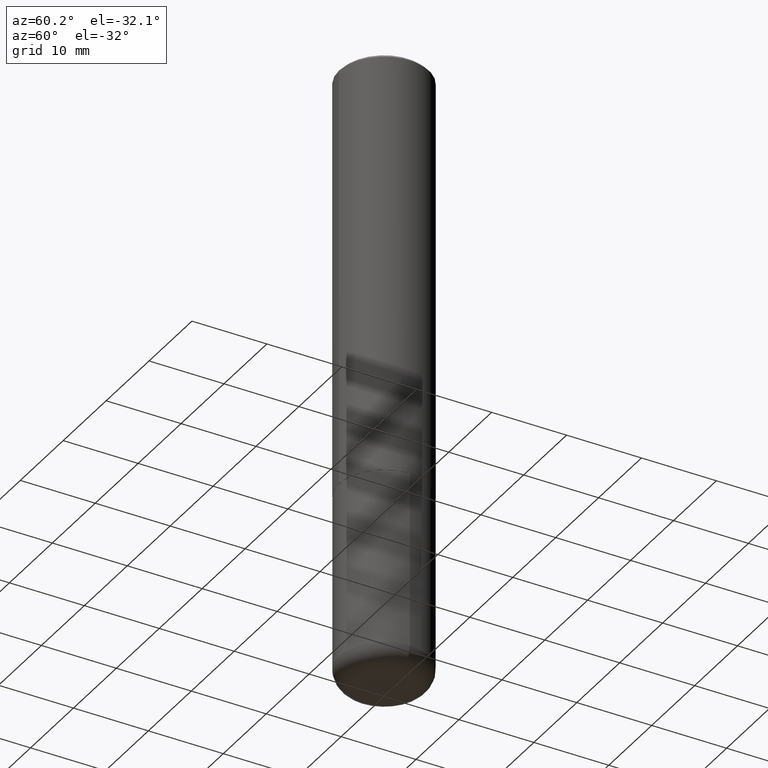
[diagram: clean part render]
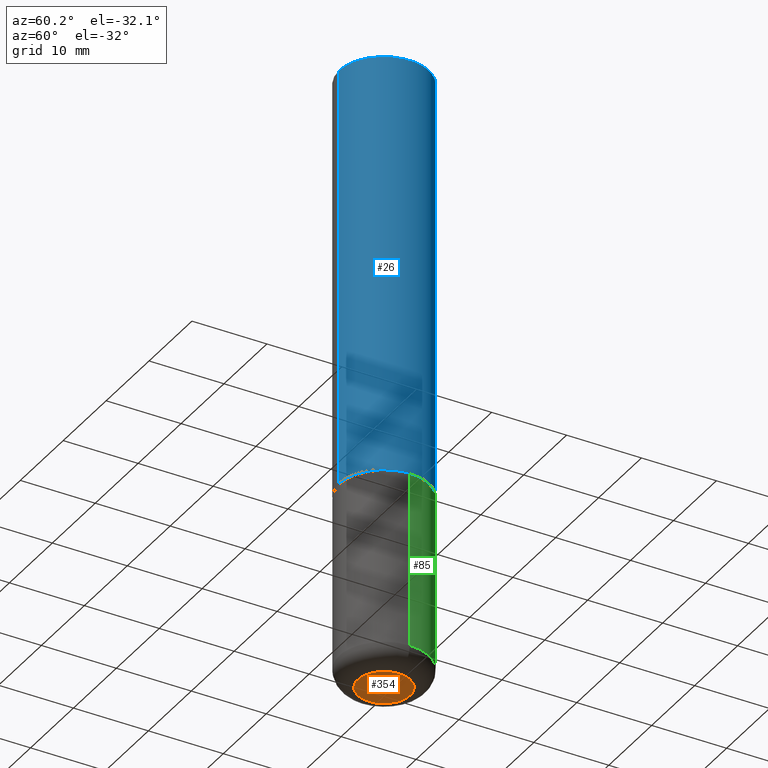
[diagram: same view with three faces highlighted in distinct colors, each labeled with its STEP entity id]
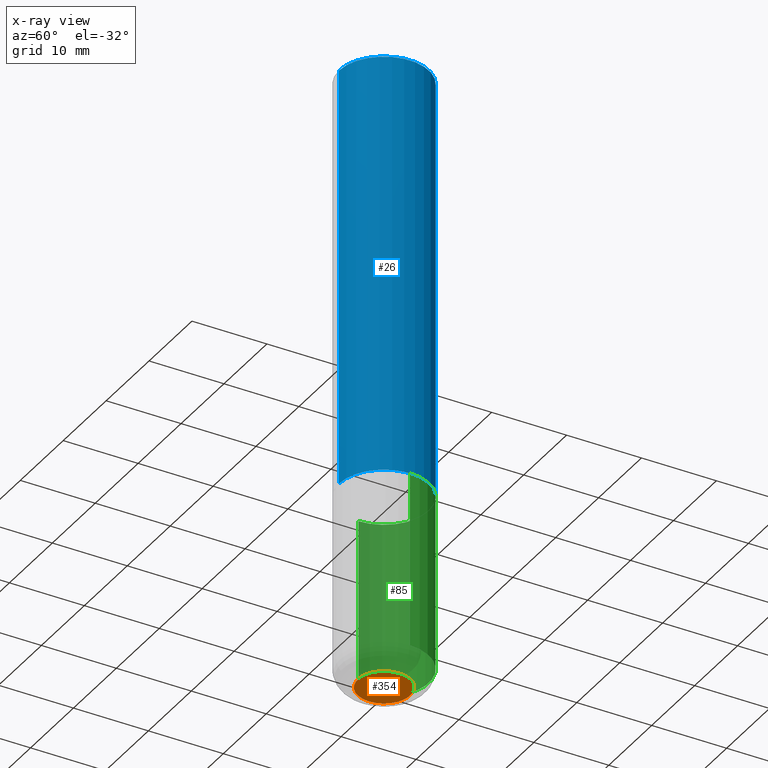
[diagram: x-ray of the same camera — body ghosted, the three highlighted faces saturated]
A machine part, auxiliary view with three faces highlighted in distinct colors.
The next image is the same camera in x-ray (body ghosted, the three faces saturated) — at least one of them is partly hidden behind the body in this view.
Their STEP definitions:

[orange] entity #354 — the highlighted planar face has unit normal (0, -0, -1).
#6 = EDGE_LOOP ( 'NONE', ( #298, #342 ) ) ;
#14 = PLANE ( 'NONE',  #284 ) ;
#37 = DIRECTION ( 'NONE',  ( -2.445468806185136597E-29, 3.491481338843145583E-15, 1.000000000000000000 ) ) ;
#42 = FACE_OUTER_BOUND ( 'NONE', #6, .T. ) ;
#57 = CARTESIAN_POINT ( 'NONE',  ( -0.1378000000000000058, -9.908617773195276440E-15, -3.267700000000000049 ) ) ;
#74 = DIRECTION ( 'NONE',  ( 2.438088387897960049E-29, -3.491481338843145188E-15, -1.000000000000000000 ) ) ;
#90 = CIRCLE ( 'NONE', #325, 0.1378000000000000058 ) ;
#100 = VERTEX_POINT ( 'NONE', #57 ) ;
#130 = AXIS2_PLACEMENT_3D ( 'NONE', #228, #288, #413 ) ;
#142 = DIRECTION ( 'NONE',  ( -1.000000000000000000, 6.982962677686265922E-15, -4.876176775795935793E-29 ) ) ;
#183 = EDGE_CURVE ( 'NONE', #258, #100, #379, .T. ) ;
#197 = CARTESIAN_POINT ( 'NONE',  ( 0.1378000000000000058, -1.237136582792291392E-14, -3.267700000000000049 ) ) ;
#228 = CARTESIAN_POINT ( 'NONE',  ( 7.991058417971171713E-29, -1.140911357093774644E-14, -3.267700000000000049 ) ) ;
#258 = VERTEX_POINT ( 'NONE', #197 ) ;
#284 = AXIS2_PLACEMENT_3D ( 'NONE', #303, #74, #142 ) ;
#288 = DIRECTION ( 'NONE',  ( -2.445468806185136597E-29, 3.491481338843145583E-15, 1.000000000000000000 ) ) ;
#297 = CARTESIAN_POINT ( 'NONE',  ( 7.991058417971171713E-29, -1.140911357093774644E-14, -3.267700000000000049 ) ) ;
#298 = ORIENTED_EDGE ( 'NONE', *, *, #183, .F. ) ;
#303 = CARTESIAN_POINT ( 'NONE',  ( 7.991058417971171713E-29, -1.140911357093774644E-14, -3.267700000000000049 ) ) ;
#318 = EDGE_CURVE ( 'NONE', #100, #258, #90, .T. ) ;
#325 = AXIS2_PLACEMENT_3D ( 'NONE', #297, #37, #360 ) ;
#342 = ORIENTED_EDGE ( 'NONE', *, *, #318, .F. ) ;
#354 = ADVANCED_FACE ( 'NONE', ( #42 ), #14, .T. ) ;
#360 = DIRECTION ( 'NONE',  ( 1.000000000000000000, -6.982962677686265922E-15, 0.000000000000000000 ) ) ;
#379 = CIRCLE ( 'NONE', #130, 0.1378000000000000058 ) ;
#413 = DIRECTION ( 'NONE',  ( 1.000000000000000000, -6.982962677686265922E-15, 0.000000000000000000 ) ) ;

[blue] entity #26 — the highlighted cylindrical surface (partial cylindrical patch) has radius 5.9995 mm, axis along (-0, 0, 1).
#8 = AXIS2_PLACEMENT_3D ( 'NONE', #247, #401, #194 ) ;
#11 = CARTESIAN_POINT ( 'NONE',  ( 1.678301941865385582E-15, 0.2361999999999924160, -2.243100000000000982 ) ) ;
#12 = DIRECTION ( 'NONE',  ( -2.443198551934710321E-29, 3.494732472144603410E-15, 1.000000000000000000 ) ) ;
#15 = ORIENTED_EDGE ( 'NONE', *, *, #50, .F. ) ;
#18 = ORIENTED_EDGE ( 'NONE', *, *, #223, .T. ) ;
#26 = ADVANCED_FACE ( 'NONE', ( #44 ), #304, .T. ) ;
#44 = FACE_OUTER_BOUND ( 'NONE', #137, .T. ) ;
#50 = EDGE_CURVE ( 'NONE', #241, #292, #384, .T. ) ;
#78 = EDGE_CURVE ( 'NONE', #324, #241, #282, .T. ) ;
#93 = CARTESIAN_POINT ( 'NONE',  ( -1.649375784469496920E-15, -0.2362000000000001321, 8.254558099205557624E-16 ) ) ;
#98 = DIRECTION ( 'NONE',  ( -2.443198551934710321E-29, 3.494732472144603410E-15, 1.000000000000000000 ) ) ;
#101 = CIRCLE ( 'NONE', #275, 0.2362000000000002709 ) ;
#111 = AXIS2_PLACEMENT_3D ( 'NONE', #207, #12, #334 ) ;
#112 = CARTESIAN_POINT ( 'NONE',  ( -1.649375784469443080E-15, -0.2362000000000081257, -2.243099999999999206 ) ) ;
#118 = VECTOR ( 'NONE', #139, 39.37007874015748143 ) ;
#124 = DIRECTION ( 'NONE',  ( -2.443198551934710321E-29, 3.494732472144603016E-15, 1.000000000000000000 ) ) ;
#133 = CARTESIAN_POINT ( 'NONE',  ( -1.620449627073635079E-15, -0.2362000000000000766, -0.01999999999999926489 ) ) ;
#137 = EDGE_LOOP ( 'NONE', ( #18, #367, #15, #179 ) ) ;
#139 = DIRECTION ( 'NONE',  ( -2.443198551934710321E-29, 3.494732472144603016E-15, 1.000000000000000000 ) ) ;
#179 = ORIENTED_EDGE ( 'NONE', *, *, #78, .F. ) ;
#194 = DIRECTION ( 'NONE',  ( -6.982962677686265922E-15, -1.000000000000000000, 3.487819265831411744E-15 ) ) ;
#207 = CARTESIAN_POINT ( 'NONE',  ( 0.000000000000000000, 0.000000000000000000, 0.000000000000000000 ) ) ;
#223 = EDGE_CURVE ( 'NONE', #324, #399, #101, .T. ) ;
#241 = VERTEX_POINT ( 'NONE', #133 ) ;
#247 = CARTESIAN_POINT ( 'NONE',  ( 4.886397103869442398E-31, -6.989464944289237832E-17, -0.02000000000000009062 ) ) ;
#275 = AXIS2_PLACEMENT_3D ( 'NONE', #382, #98, #412 ) ;
#278 = EDGE_CURVE ( 'NONE', #399, #292, #418, .T. ) ;
#282 = LINE ( 'NONE', #93, #373 ) ;
#292 = VERTEX_POINT ( 'NONE', #409 ) ;
#304 = CYLINDRICAL_SURFACE ( 'NONE', #111, 0.2362000000000001321 ) ;
#324 = VERTEX_POINT ( 'NONE', #112 ) ;
#331 = CARTESIAN_POINT ( 'NONE',  ( 1.678301941865357380E-15, 0.2362000000000001321, -8.254558099205557624E-16 ) ) ;
#334 = DIRECTION ( 'NONE',  ( -6.982962677686265922E-15, -1.000000000000000000, 3.494732472144603410E-15 ) ) ;
#367 = ORIENTED_EDGE ( 'NONE', *, *, #278, .T. ) ;
#373 = VECTOR ( 'NONE', #124, 39.37007874015748143 ) ;
#382 = CARTESIAN_POINT ( 'NONE',  ( 5.480338671844748839E-29, -7.839034408267561952E-15, -2.243100000000000094 ) ) ;
#384 = CIRCLE ( 'NONE', #8, 0.2361999999999999933 ) ;
#399 = VERTEX_POINT ( 'NONE', #11 ) ;
#401 = DIRECTION ( 'NONE',  ( -2.443198551934710321E-29, 3.494732472144603410E-15, 1.000000000000000000 ) ) ;
#409 = CARTESIAN_POINT ( 'NONE',  ( 1.649375784469496525E-15, 0.2361999999999999378, -0.02000000000000091288 ) ) ;
#412 = DIRECTION ( 'NONE',  ( -6.982962677686265922E-15, -1.000000000000000000, 3.469747663417773058E-15 ) ) ;
#418 = LINE ( 'NONE', #331, #118 ) ;

[green] entity #85 — the highlighted cylindrical surface (partial cylindrical patch) has radius 5.9995 mm, axis along (-0, 0, 1).
#16 = EDGE_CURVE ( 'NONE', #120, #146, #75, .T. ) ;
#21 = CARTESIAN_POINT ( 'NONE',  ( -0.2362000000000000766, -7.772090597981385734E-15, -2.244100000000000428 ) ) ;
#23 = AXIS2_PLACEMENT_3D ( 'NONE', #293, #356, #106 ) ;
#29 = VECTOR ( 'NONE', #355, 39.37007874015748143 ) ;
#52 = VECTOR ( 'NONE', #177, 39.37007874015748143 ) ;
#65 = DIRECTION ( 'NONE',  ( -2.445468806185136597E-29, 3.491481338843145583E-15, 1.000000000000000000 ) ) ;
#75 = LINE ( 'NONE', #185, #52 ) ;
#77 = ORIENTED_EDGE ( 'NONE', *, *, #229, .F. ) ;
#85 = ADVANCED_FACE ( 'NONE', ( #285 ), #313, .T. ) ;
#87 = CARTESIAN_POINT ( 'NONE',  ( -0.2362000000000000766, -9.387249865330223945E-15, -3.169299999999999784 ) ) ;
#99 = CARTESIAN_POINT ( 'NONE',  ( 7.750424287442554569E-29, -1.106555180719558034E-14, -3.169299999999999784 ) ) ;
#106 = DIRECTION ( 'NONE',  ( 1.000000000000000000, -6.982962677686268288E-15, 0.000000000000000000 ) ) ;
#120 = VERTEX_POINT ( 'NONE', #87 ) ;
#129 = LINE ( 'NONE', #226, #29 ) ;
#146 = VERTEX_POINT ( 'NONE', #21 ) ;
#152 = ORIENTED_EDGE ( 'NONE', *, *, #305, .F. ) ;
#174 = VERTEX_POINT ( 'NONE', #222 ) ;
#177 = DIRECTION ( 'NONE',  ( -2.445468806185136877E-29, 3.491481338843145188E-15, 1.000000000000000000 ) ) ;
#185 = CARTESIAN_POINT ( 'NONE',  ( -0.2361999999999999933, 1.678301941865356591E-15, -1.161852468318208757E-29 ) ) ;
#211 = CIRCLE ( 'NONE', #23, 0.2362000000000000210 ) ;
#220 = DIRECTION ( 'NONE',  ( -2.445468806185136597E-29, 3.491481338843145583E-15, 1.000000000000000000 ) ) ;
#222 = CARTESIAN_POINT ( 'NONE',  ( 0.2362000000000000766, -1.271492759166507844E-14, -3.169299999999999784 ) ) ;
#226 = CARTESIAN_POINT ( 'NONE',  ( 0.2361999999999999933, -1.649375784469496131E-15, 1.151752954443000088E-29 ) ) ;
#227 = ORIENTED_EDGE ( 'NONE', *, *, #16, .T. ) ;
#229 = EDGE_CURVE ( 'NONE', #274, #146, #211, .T. ) ;
#235 = EDGE_CURVE ( 'NONE', #174, #120, #260, .T. ) ;
#260 = CIRCLE ( 'NONE', #319, 0.2361999999999999933 ) ;
#271 = ORIENTED_EDGE ( 'NONE', *, *, #235, .T. ) ;
#274 = VERTEX_POINT ( 'NONE', #295 ) ;
#285 = FACE_OUTER_BOUND ( 'NONE', #300, .T. ) ;
#293 = CARTESIAN_POINT ( 'NONE',  ( 5.487876547960065873E-29, -7.835233272497903917E-15, -2.244100000000000428 ) ) ;
#295 = CARTESIAN_POINT ( 'NONE',  ( 0.2362000000000000210, -9.484609056967400443E-15, -2.244100000000000428 ) ) ;
#300 = EDGE_LOOP ( 'NONE', ( #271, #227, #77, #152 ) ) ;
#305 = EDGE_CURVE ( 'NONE', #174, #274, #129, .T. ) ;
#313 = CYLINDRICAL_SURFACE ( 'NONE', #357, 0.2361999999999999933 ) ;
#319 = AXIS2_PLACEMENT_3D ( 'NONE', #99, #65, #326 ) ;
#326 = DIRECTION ( 'NONE',  ( 1.000000000000000000, -6.982962677686265133E-15, 0.000000000000000000 ) ) ;
#355 = DIRECTION ( 'NONE',  ( -2.445468806185136877E-29, 3.491481338843145188E-15, 1.000000000000000000 ) ) ;
#356 = DIRECTION ( 'NONE',  ( -2.445468806185136597E-29, 3.491481338843145583E-15, 1.000000000000000000 ) ) ;
#357 = AXIS2_PLACEMENT_3D ( 'NONE', #376, #220, #372 ) ;
#372 = DIRECTION ( 'NONE',  ( 1.000000000000000000, -6.982962677686266711E-15, 4.876176775795936353E-29 ) ) ;
#376 = CARTESIAN_POINT ( 'NONE',  ( 0.000000000000000000, 0.000000000000000000, 0.000000000000000000 ) ) ;